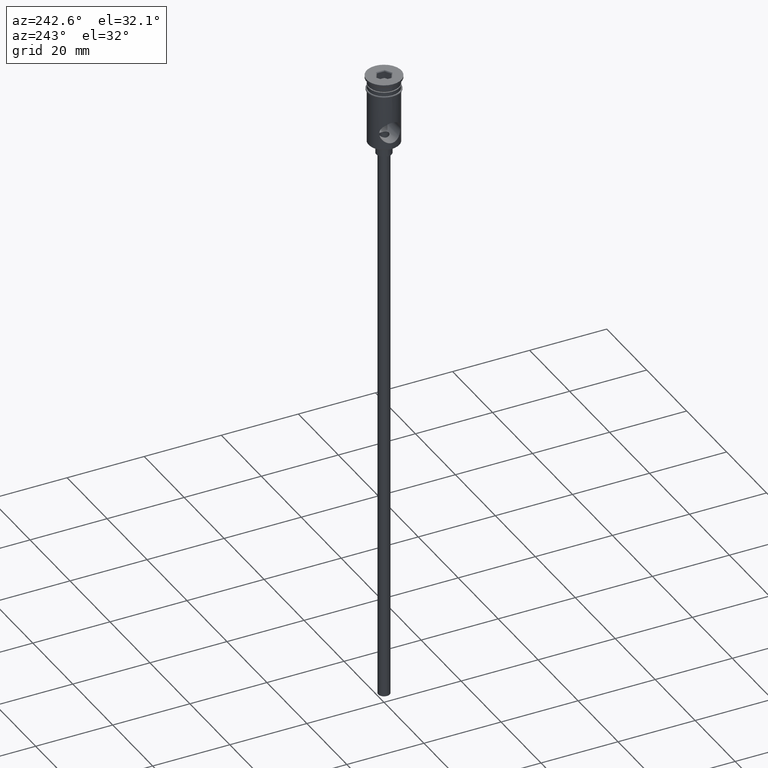
[diagram: clean part render]
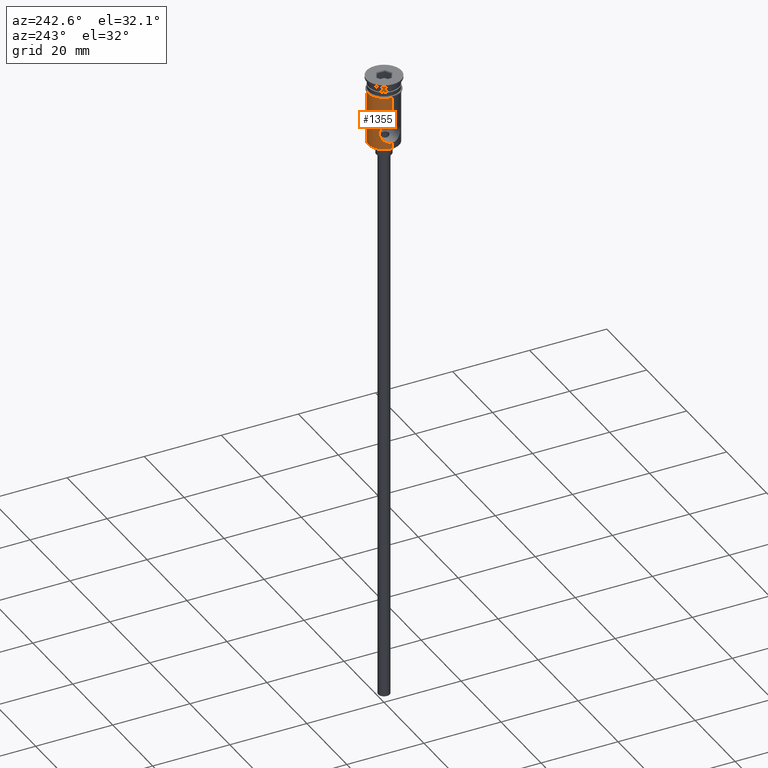
[diagram: same view with one face highlighted and labeled with its STEP entity id]
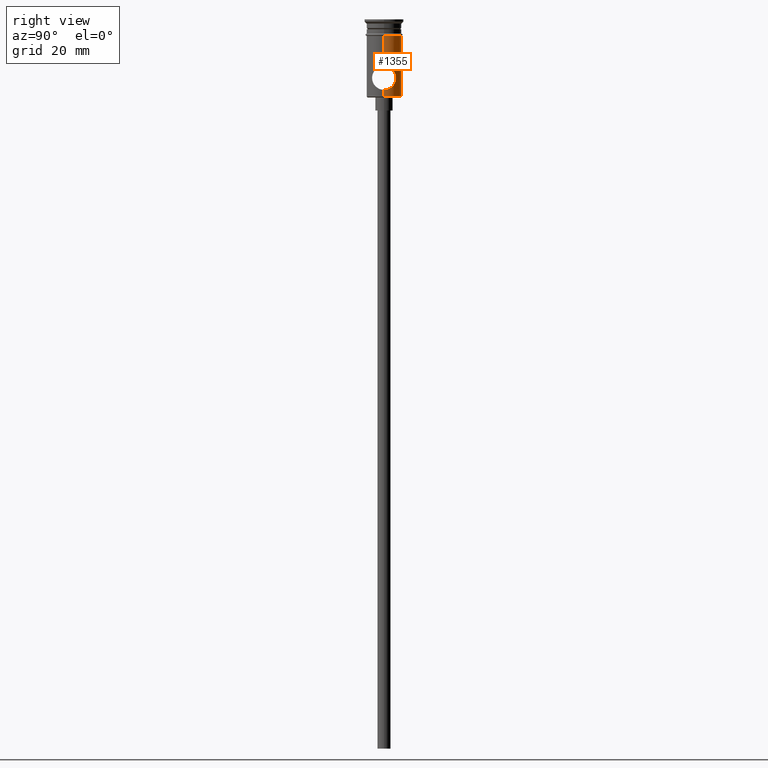
[diagram: same view with one face highlighted and labeled with its STEP entity id]
A machine part, auxiliary view. The second image highlights one B-rep face of the part: STEP entity #1355.
A second angle (right view) of the same face is appended — the face is thin or edge-on in the first view.
In plain terms, the highlighted cylindrical surface (edge-blend (fillet) strip) has radius 4 mm, axis along (-0, -0, 1).
Its self-contained STEP definition (entity closure, byte-faithful):
#1 = CARTESIAN_POINT ( 'NONE',  ( 4.000000000000000000, 0.000000000000000000, -17.80000000000001137 ) ) ;
#16 = LINE ( 'NONE', #897, #469 ) ;
#17 = VERTEX_POINT ( 'NONE', #267 ) ;
#18 = CARTESIAN_POINT ( 'NONE',  ( -3.356081183987128735, 2.194354300722539897, -15.19340172252557331 ) ) ;
#20 = CARTESIAN_POINT ( 'NONE',  ( -4.000000000000000000, 4.898587196589412829E-16, 0.000000000000000000 ) ) ;
#27 = EDGE_LOOP ( 'NONE', ( #1351, #1094, #406, #702, #658, #977, #1111, #863 ) ) ;
#33 = EDGE_CURVE ( 'NONE', #17, #403, #1344, .T. ) ;
#69 = LINE ( 'NONE', #278, #299 ) ;
#78 = CARTESIAN_POINT ( 'NONE',  ( -4.000000000000000000, 4.898587196589412829E-16, -17.80000000000001137 ) ) ;
#88 = CARTESIAN_POINT ( 'NONE',  ( 3.898469200194268236, 0.9122845588995921462, -10.89933121525977811 ) ) ;
#97 = CARTESIAN_POINT ( 'NONE',  ( 3.039098135780837762, 2.602305915985867024, -12.59307557713039216 ) ) ;
#109 = CARTESIAN_POINT ( 'NONE',  ( -3.897876258935293325, 0.9143382370299266704, -16.09976330978815895 ) ) ;
#147 = CARTESIAN_POINT ( 'NONE',  ( -3.627876891014071070, 1.707999379360746195, -11.31682734715131922 ) ) ;
#154 = EDGE_CURVE ( 'NONE', #1069, #701, #1135, .T. ) ;
#157 = FACE_OUTER_BOUND ( 'NONE', #27, .T. ) ;
#164 = DIRECTION ( 'NONE',  ( -0.000000000000000000, -0.000000000000000000, 1.000000000000000000 ) ) ;
#172 = CYLINDRICAL_SURFACE ( 'NONE', #472, 4.000000000000000000 ) ;
#191 = CARTESIAN_POINT ( 'NONE',  ( 2.990853264625744412, 2.656566527895887209, -12.76540023414572644 ) ) ;
#210 = CARTESIAN_POINT ( 'NONE',  ( 3.898332255911910238, 0.9125459904059147753, -16.10045093770546742 ) ) ;
#217 = CARTESIAN_POINT ( 'NONE',  ( 2.923708177251532092, 2.730282545867590116, -13.87638281426623799 ) ) ;
#219 = EDGE_CURVE ( 'NONE', #232, #444, #1073, .T. ) ;
#232 = VERTEX_POINT ( 'NONE', #1224 ) ;
#267 = CARTESIAN_POINT ( 'NONE',  ( 4.000000000000000000, 0.000000000000000000, -3.799999999999998046 ) ) ;
#278 = CARTESIAN_POINT ( 'NONE',  ( 4.000000000000000000, 0.000000000000000000, 0.000000000000000000 ) ) ;
#299 = VECTOR ( 'NONE', #703, 1000.000000000000000 ) ;
#310 = CARTESIAN_POINT ( 'NONE',  ( -3.935773863085988200, 0.7372053917619743046, -10.84414365491493371 ) ) ;
#317 = CARTESIAN_POINT ( 'NONE',  ( 2.904685908915327630, 2.750054504224673124, -13.31400209527123302 ) ) ;
#349 = DIRECTION ( 'NONE',  ( -1.000000000000000000, 0.000000000000000000, 0.000000000000000000 ) ) ;
#354 = CARTESIAN_POINT ( 'NONE',  ( -3.935929372452465103, 0.7361346014914833535, -16.15608523965943277 ) ) ;
#358 = CARTESIAN_POINT ( 'NONE',  ( -3.750403272509822639, 1.399798099407463248, -15.87362618509271073 ) ) ;
#360 = CARTESIAN_POINT ( 'NONE',  ( -2.904838189979199292, 2.749893654545319421, -13.68954574786105383 ) ) ;
#389 = DIRECTION ( 'NONE',  ( 1.000000000000000000, 0.000000000000000000, 0.000000000000000000 ) ) ;
#403 = VERTEX_POINT ( 'NONE', #418 ) ;
#406 = ORIENTED_EDGE ( 'NONE', *, *, #219, .F. ) ;
#415 = CARTESIAN_POINT ( 'NONE',  ( 3.629467468971919075, 1.704948656411081842, -11.31407162498316943 ) ) ;
#418 = CARTESIAN_POINT ( 'NONE',  ( -4.000000000000000000, 4.898587196589412829E-16, -3.799999999999998046 ) ) ;
#425 = CARTESIAN_POINT ( 'NONE',  ( -4.000000000000000000, -1.082428048190059701E-15, -16.25000000000000000 ) ) ;
#426 = CARTESIAN_POINT ( 'NONE',  ( 2.904789332996817297, 2.749945260648944512, -13.68760613050835673 ) ) ;
#431 = LINE ( 'NONE', #531, #1413 ) ;
#444 = VERTEX_POINT ( 'NONE', #425 ) ;
#445 = CARTESIAN_POINT ( 'NONE',  ( -3.999999999999999112, 0.1884943161018475810, -16.25000000000000000 ) ) ;
#451 = CARTESIAN_POINT ( 'NONE',  ( -3.352704555667196828, 2.184805989472308418, -11.82087544688862124 ) ) ;
#469 = VECTOR ( 'NONE', #1343, 1000.000000000000000 ) ;
#472 = AXIS2_PLACEMENT_3D ( 'NONE', #1162, #164, #389 ) ;
#474 = DIRECTION ( 'NONE',  ( -0.000000000000000000, -0.000000000000000000, 1.000000000000000000 ) ) ;
#486 = CARTESIAN_POINT ( 'NONE',  ( -3.040558828618885379, 2.600578980709926213, -14.41155145748494881 ) ) ;
#531 = CARTESIAN_POINT ( 'NONE',  ( -4.000000000000000000, 4.898587196589412829E-16, 0.000000000000000000 ) ) ;
#536 = B_SPLINE_CURVE_WITH_KNOTS ( 'NONE', 3,
 ( #1081, #1410, #1429, #961, #210, #879, #1309, #1402, #734, #842, #629, #1292, #1189, #217, #426, #317, #650, #191, #97, #1099, #1074, #747, #1203, #415, #546, #88, #852, #1090, #789, #1352 ),
 .UNSPECIFIED., .F., .F.,
 ( 4, 2, 2, 2, 2, 2, 2, 2, 2, 2, 2, 2, 2, 2, 4 ),
 ( 1.048010074117292363E-18, 0.0005572568188834413133, 0.001114513637766881542, 0.002229027275533760049, 0.002786284094417199302, 0.003343540913300638122, 0.003900797732184077375, 0.004458054551067516628, 0.005015311369950955014, 0.005572568188834395135, 0.006129825007717833521, 0.006687081826601272774, 0.007801595464368153883, 0.008358852283251595738, 0.008916109102135036726 ),
 .UNSPECIFIED. ) ;
#546 = CARTESIAN_POINT ( 'NONE',  ( 3.757420049329555312, 1.415307548900980095, -11.11413128623153490 ) ) ;
#559 = CARTESIAN_POINT ( 'NONE',  ( -3.805236129597703076, 1.244842054105928630, -15.95868906918809493 ) ) ;
#565 = DIRECTION ( 'NONE',  ( -0.000000000000000000, -0.000000000000000000, 1.000000000000000000 ) ) ;
#568 = CARTESIAN_POINT ( 'NONE',  ( -3.422360837206557704, 2.075363691986896075, -11.68737297714249124 ) ) ;
#574 = DIRECTION ( 'NONE',  ( -0.000000000000000000, -0.000000000000000000, 1.000000000000000000 ) ) ;
#578 = LINE ( 'NONE', #20, #1065 ) ;
#579 = CARTESIAN_POINT ( 'NONE',  ( 4.000000000000000000, -2.885398231453893753E-20, -10.75000000000000000 ) ) ;
#623 = CARTESIAN_POINT ( 'NONE',  ( -4.000000000000000000, 4.898875736391346734E-16, -10.75000000000000000 ) ) ;
#629 = CARTESIAN_POINT ( 'NONE',  ( 3.153790941630460587, 2.462039204780214874, -14.73790887393710136 ) ) ;
#650 = CARTESIAN_POINT ( 'NONE',  ( 2.922849711538092699, 2.731208254861018148, -13.12921164836393650 ) ) ;
#655 = CARTESIAN_POINT ( 'NONE',  ( -3.758308184967917409, 1.412635338666774265, -11.11275848598740801 ) ) ;
#658 = ORIENTED_EDGE ( 'NONE', *, *, #33, .F. ) ;
#678 = CARTESIAN_POINT ( 'NONE',  ( -4.000000000000000000, -1.082428048190059701E-15, -16.25000000000000000 ) ) ;
#683 = AXIS2_PLACEMENT_3D ( 'NONE', #689, #565, #349 ) ;
#689 = CARTESIAN_POINT ( 'NONE',  ( 0.000000000000000000, 0.000000000000000000, -17.80000000000001137 ) ) ;
#701 = VERTEX_POINT ( 'NONE', #78 ) ;
#702 = ORIENTED_EDGE ( 'NONE', *, *, #1066, .T. ) ;
#703 = DIRECTION ( 'NONE',  ( -0.000000000000000000, -0.000000000000000000, 1.000000000000000000 ) ) ;
#734 = CARTESIAN_POINT ( 'NONE',  ( 3.352571063512280070, 2.184990303520331079, -15.17882514829168805 ) ) ;
#741 = DIRECTION ( 'NONE',  ( -0.000000000000000000, -0.000000000000000000, 1.000000000000000000 ) ) ;
#747 = CARTESIAN_POINT ( 'NONE',  ( 3.352887962353420903, 2.184498314583853240, -11.82055838298663275 ) ) ;
#774 = CARTESIAN_POINT ( 'NONE',  ( -3.560899448792282929, 1.827460818524927255, -15.56227107929443143 ) ) ;
#789 = CARTESIAN_POINT ( 'NONE',  ( 4.000000000000000000, 0.1860873315878985856, -10.74999999999999645 ) ) ;
#820 = VERTEX_POINT ( 'NONE', #579 ) ;
#836 = EDGE_CURVE ( 'NONE', #820, #17, #16, .T. ) ;
#842 = CARTESIAN_POINT ( 'NONE',  ( 3.217982150421164089, 2.378761493287735451, -14.89073011870239327 ) ) ;
#852 = CARTESIAN_POINT ( 'NONE',  ( 3.935590311853631729, 0.7380237449173248088, -10.84441589138536699 ) ) ;
#859 = VERTEX_POINT ( 'NONE', #1353 ) ;
#863 = ORIENTED_EDGE ( 'NONE', *, *, #1384, .F. ) ;
#878 = CARTESIAN_POINT ( 'NONE',  ( -3.898650158565305723, 0.9113899793340292099, -10.89906584721212646 ) ) ;
#879 = CARTESIAN_POINT ( 'NONE',  ( 3.758839784380466842, 1.410695475187754955, -15.88804927343668005 ) ) ;
#897 = CARTESIAN_POINT ( 'NONE',  ( 4.000000000000000000, 0.000000000000000000, 0.000000000000000000 ) ) ;
#915 = CARTESIAN_POINT ( 'NONE',  ( -2.991381809801703984, 2.655967432490847546, -14.23628159399357962 ) ) ;
#921 = CARTESIAN_POINT ( 'NONE',  ( -3.210458317317453236, 2.392695863158818881, -14.90116197658784358 ) ) ;
#961 = CARTESIAN_POINT ( 'NONE',  ( 3.936195930800992837, 0.7345946403777908751, -16.15647894591264588 ) ) ;
#969 = CARTESIAN_POINT ( 'NONE',  ( -3.999999999999999112, 0.1858078852913923329, -10.75000000000000178 ) ) ;
#977 = ORIENTED_EDGE ( 'NONE', *, *, #836, .F. ) ;
#1008 = CARTESIAN_POINT ( 'NONE',  ( -3.039104102417667708, 2.602270566844717692, -12.59325405576322510 ) ) ;
#1017 = DIRECTION ( 'NONE',  ( 1.000000000000000000, 0.000000000000000000, 0.000000000000000000 ) ) ;
#1021 = CARTESIAN_POINT ( 'NONE',  ( -2.904637655607715807, 2.750105472685720809, -13.31355271269106311 ) ) ;
#1029 = CARTESIAN_POINT ( 'NONE',  ( -2.923675419418522381, 2.730320526303180895, -13.87632886117500952 ) ) ;
#1065 = VECTOR ( 'NONE', #474, 1000.000000000000000 ) ;
#1066 = EDGE_CURVE ( 'NONE', #232, #403, #431, .T. ) ;
#1069 = VERTEX_POINT ( 'NONE', #1 ) ;
#1073 = B_SPLINE_CURVE_WITH_KNOTS ( 'NONE', 3,
 ( #623, #969, #1304, #310, #878, #655, #147, #568, #451, #1226, #1114, #1008, #1341, #1131, #1021, #360, #1029, #915, #486, #921, #18, #774, #1127, #358, #559, #109, #354, #1244, #445, #678 ),
 .UNSPECIFIED., .F., .F.,
 ( 4, 2, 2, 2, 2, 2, 2, 2, 2, 2, 2, 2, 2, 2, 4 ),
 ( 0.008916109102135036726, 0.009472529091595908307, 0.01002894908105677989, 0.01114178905997852131, 0.01169820904943938943, 0.01225462903890025754, 0.01281104902836112565, 0.01336746901782199376, 0.01392388900728286361, 0.01448030899674372998, 0.01559314897566546620, 0.01614956896512633605, 0.01670598895458720243, 0.01726240894404806880, 0.01781882893350893518 ),
 .UNSPECIFIED. ) ;
#1074 = CARTESIAN_POINT ( 'NONE',  ( 3.218452372936937866, 2.378120034323490728, -12.10820183441513365 ) ) ;
#1081 = CARTESIAN_POINT ( 'NONE',  ( 4.000000000000000000, 1.082428048190059701E-15, -16.25000000000000000 ) ) ;
#1090 = CARTESIAN_POINT ( 'NONE',  ( 3.986569257409959377, 0.3752541894392961708, -10.76943406977662754 ) ) ;
#1094 = ORIENTED_EDGE ( 'NONE', *, *, #1202, .T. ) ;
#1099 = CARTESIAN_POINT ( 'NONE',  ( 3.153159797772616901, 2.462863546563664574, -12.26354897380435460 ) ) ;
#1102 = EDGE_CURVE ( 'NONE', #859, #820, #536, .T. ) ;
#1111 = ORIENTED_EDGE ( 'NONE', *, *, #1102, .F. ) ;
#1114 = CARTESIAN_POINT ( 'NONE',  ( -3.152150098412337176, 2.464125728423233408, -12.26627202958722052 ) ) ;
#1127 = CARTESIAN_POINT ( 'NONE',  ( -3.628318813380886798, 1.691230916824618014, -15.67560887377282519 ) ) ;
#1128 = CARTESIAN_POINT ( 'NONE',  ( 0.000000000000000000, 0.000000000000000000, -3.799999999999998046 ) ) ;
#1131 = CARTESIAN_POINT ( 'NONE',  ( -2.922903409755361892, 2.731146823183896899, -13.12907672655106239 ) ) ;
#1135 = CIRCLE ( 'NONE', #683, 4.000000000000000000 ) ;
#1162 = CARTESIAN_POINT ( 'NONE',  ( 0.000000000000000000, 0.000000000000000000, 0.000000000000000000 ) ) ;
#1189 = CARTESIAN_POINT ( 'NONE',  ( 2.991204009610981096, 2.656164689714076044, -14.23545628303815924 ) ) ;
#1202 = EDGE_CURVE ( 'NONE', #701, #444, #578, .T. ) ;
#1203 = CARTESIAN_POINT ( 'NONE',  ( 3.422612705757198448, 2.075016451433645770, -11.68686323689984974 ) ) ;
#1224 = CARTESIAN_POINT ( 'NONE',  ( -4.000000000000000000, 4.898875736391346734E-16, -10.75000000000000000 ) ) ;
#1226 = CARTESIAN_POINT ( 'NONE',  ( -3.217675228092755635, 2.379195489181981316, -12.10994054056969560 ) ) ;
#1244 = CARTESIAN_POINT ( 'NONE',  ( -3.986675172797201405, 0.3739722490365800511, -16.23071926583458691 ) ) ;
#1273 = AXIS2_PLACEMENT_3D ( 'NONE', #1128, #574, #1017 ) ;
#1292 = CARTESIAN_POINT ( 'NONE',  ( 3.040338712675894062, 2.600841183461505501, -14.41086802801371292 ) ) ;
#1304 = CARTESIAN_POINT ( 'NONE',  ( -3.986797965649419240, 0.3731349247757173027, -10.76909995728804681 ) ) ;
#1309 = CARTESIAN_POINT ( 'NONE',  ( 3.628548934766043121, 1.706512450506086465, -15.68423018591682805 ) ) ;
#1341 = CARTESIAN_POINT ( 'NONE',  ( -2.990619957445074029, 2.656825094483681760, -12.76649644725104515 ) ) ;
#1343 = DIRECTION ( 'NONE',  ( -0.000000000000000000, -0.000000000000000000, 1.000000000000000000 ) ) ;
#1344 = CIRCLE ( 'NONE', #1273, 4.000000000000000000 ) ;
#1351 = ORIENTED_EDGE ( 'NONE', *, *, #154, .T. ) ;
#1352 = CARTESIAN_POINT ( 'NONE',  ( 4.000000000000000000, -2.885398231453893753E-20, -10.75000000000000000 ) ) ;
#1353 = CARTESIAN_POINT ( 'NONE',  ( 4.000000000000000000, 1.082428048190059701E-15, -16.25000000000000000 ) ) ;
#1355 = ADVANCED_FACE ( 'NONE', ( #157 ), #172, .T. ) ;
#1384 = EDGE_CURVE ( 'NONE', #1069, #859, #69, .T. ) ;
#1402 = CARTESIAN_POINT ( 'NONE',  ( 3.423476604098442788, 2.073510542563412162, -15.31471501676682934 ) ) ;
#1410 = CARTESIAN_POINT ( 'NONE',  ( 4.000000000000001776, 0.1887778026635980599, -16.25000000000000355 ) ) ;
#1413 = VECTOR ( 'NONE', #741, 1000.000000000000000 ) ;
#1429 = CARTESIAN_POINT ( 'NONE',  ( 3.986715318769655791, 0.3733211196991539360, -16.23077663263318726 ) ) ;